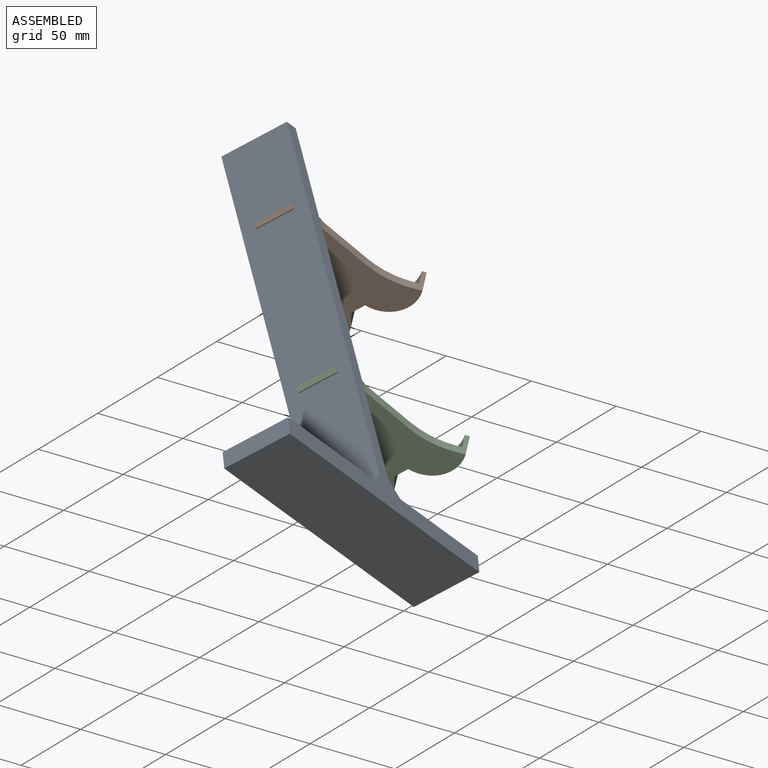
[diagram: assembled view]
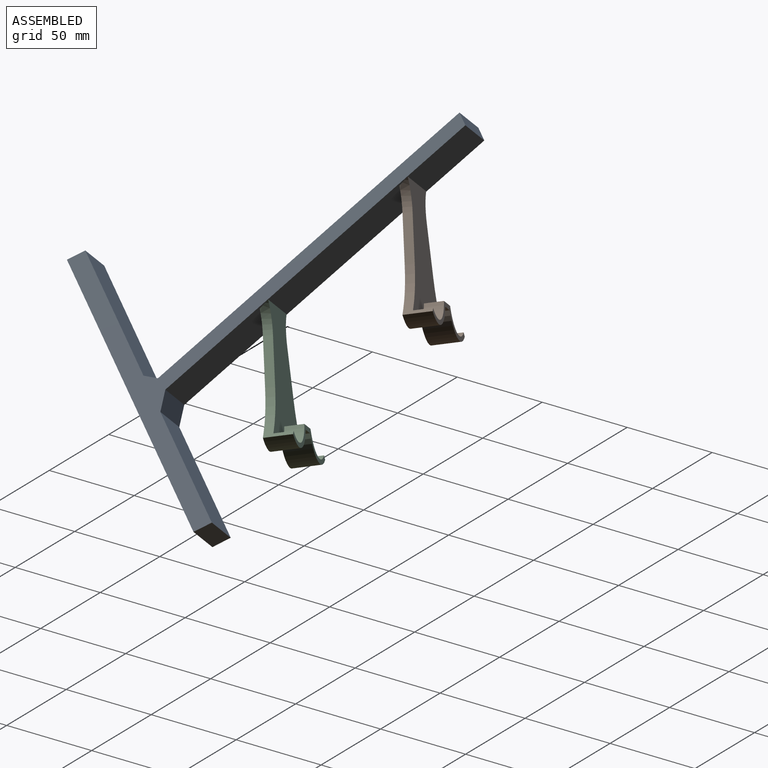
[diagram: assembled view, second angle]
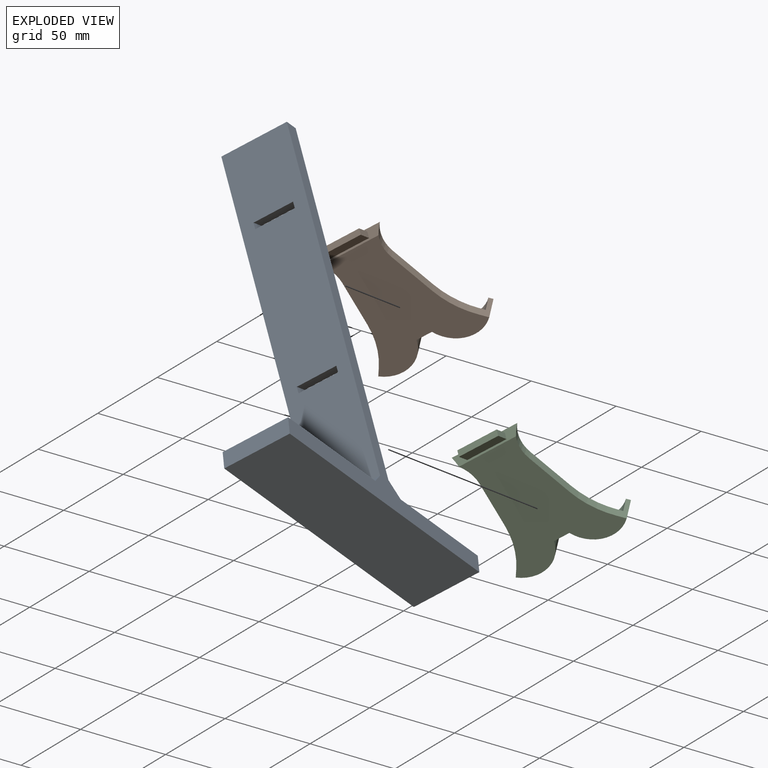
[diagram: exploded view]
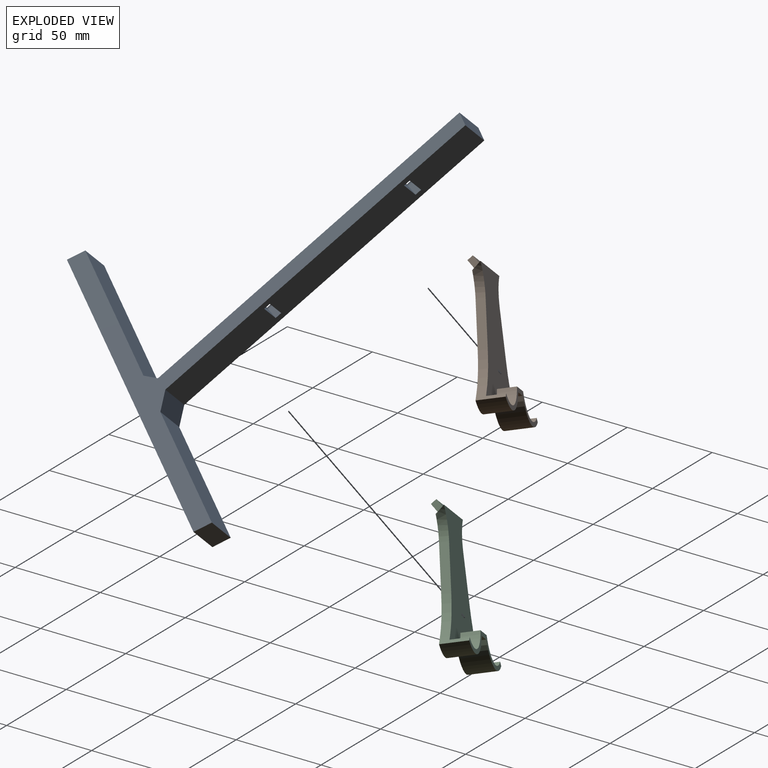
[diagram: exploded view, second angle]
ASSEMBLY  parts=3 mates=2
PART A: 20 faces, bbox 40x150x203.2 mm
  f0: plane 186.42x49.95mm, normal (0,-0.97,0.26), area 7546.2mm2, adj f7,f8,f9,f10,f11,f12,f13,f14
  f1: plane 187.39x50.21mm, normal (0,0.97,-0.26), area 7586.2mm2, adj f7,f8,f9,f10,f11,f12,f13,f14
  f2: plane 61x40mm, normal (0,0,1), area 2440mm2, adj f3,f8,f9,f18
  f3: plane 40x10mm, normal (0,-1,0), area 400mm2, adj f2,f4,f8,f9
  f4: plane 150x40mm, normal (0,0,-1), area 6000mm2, adj f3,f5,f8,f9
  f5: plane 40x10mm, normal (0,1,0), area 400mm2, adj f4,f6,f8,f9
  f6: plane 69x40mm, normal (0,0,1), area 2760mm2, adj f5,f8,f9,f19
  f7: plane 40x7mm, normal (0,0,1), area 280mm2, adj f0,f1,f8,f9
  f8: plane 203.19x150mm, normal (1,0,0), area 2893.3mm2, adj f0,f1,f2,f3,f4,f5,f6,f7
  f9: plane 203.19x150mm, normal (-1,0,0), area 2893.3mm2, adj f0,f1,f2,f3,f4,f5,f6,f7
  f10: plane 24.14x6.53mm, normal (0,0.26,0.97), area 163.2mm2, adj f0,f1,f11,f13
  f11: plane 7.46x5.23mm, normal (-1,0,0), area 24.3mm2, adj f0,f1,f10,f12
  f12: plane 24.14x6.53mm, normal (0,-0.26,-0.97), area 163.2mm2, adj f0,f1,f11,f13
  f13: plane 7.46x5.23mm, normal (1,0,0), area 24.3mm2, adj f0,f1,f10,f12
  f14: plane 7.46x5.23mm, normal (-1,0,0), area 24.3mm2, adj f0,f1,f15,f17
  f15: plane 24.14x6.53mm, normal (0,-0.26,-0.97), area 163.2mm2, adj f0,f1,f14,f16
  f16: plane 7.46x5.23mm, normal (1,0,0), area 24.3mm2, adj f0,f1,f15,f17
  f17: plane 24.14x6.53mm, normal (0,0.26,0.97), area 163.2mm2, adj f0,f1,f14,f16
  f18: plane 40x8.81mm, normal (0,-0.61,0.79), area 444.3mm2, adj f0,f2,f8,f9
  f19: plane 40x5.8mm, normal (0,0.79,0.61), area 292.2mm2, adj f1,f6,f8,f9
PART B: 23 faces, bbox 67.8x80.2x18.1 mm
  f0: plane 40x5mm, normal (0,0.82,-0.57), area 143.1mm2, adj f1,f2,f3,f15,f18,f19,f20,f21
  f1: plane 71.82x67.78mm, normal (0,0,-1), area 2745.1mm2, adj f0,f2,f3,f5,f6,f7,f8,f9
  f2: cylinder r=20mm len=17.05mm, axis (0,0,1), area 80.9mm2, adj f0,f1,f14,f15
  f3: cylinder r=20mm len=17.05mm, axis (0,0,1), area 80.9mm2, adj f0,f1,f13,f15
  f4: plane 67.78x14.5mm, normal (0,0,1), area 196.9mm2, adj f5,f6,f7,f8,f9,f10,f11,f12
  f5: plane 15x3.91mm, normal (0.77,0.64,0), area 50.5mm2, adj f1,f4,f9,f12,f15,f16
  f6: plane 15x3.91mm, normal (-0.77,0.64,0), area 50.5mm2, adj f1,f4,f7,f10,f15,f17
  f7: cylinder r=18.5mm len=29.21mm, axis (0,0,-1), area 530mm2, adj f1,f4,f6,f8
  f8: plane 15x9.36mm, normal (0,-1,0), area 140.4mm2, adj f1,f4,f7,f9
  f9: cylinder r=18.5mm len=29.21mm, axis (0,0,-1), area 530mm2, adj f1,f4,f5,f8
  f10: cylinder r=16mm len=25.78mm, axis (0,0,-1), area 322.6mm2, adj f4,f6,f11,f15
  f11: plane 13.02x10mm, normal (0,1,0), area 130.2mm2, adj f4,f10,f12,f15
  f12: cylinder r=16mm len=25.78mm, axis (0,0,-1), area 322.6mm2, adj f4,f5,f11,f15
  f13: plane 26.57x5mm, normal (0.98,0.17,0), area 134.9mm2, adj f1,f3,f15,f16
  f14: plane 26.57x5mm, normal (-0.98,0.17,0), area 134.9mm2, adj f1,f2,f15,f17
  f15: plane 72.82x64.57mm, normal (0,0,1), area 2678.5mm2, adj f0,f2,f3,f5,f6,f10,f11,f12
  f16: cylinder r=50mm len=23.46mm, axis (0,0,-1), area 130.9mm2, adj f1,f5,f13,f15
  f17: cylinder r=50mm len=23.46mm, axis (0,0,-1), area 130.9mm2, adj f1,f6,f14,f15
  f18: plane 7.74x6.88mm, normal (-1,0,0), area 24.5mm2, adj f0,f19,f21,f22
  f19: plane 24x5.73mm, normal (0,0.57,0.82), area 168mm2, adj f0,f18,f20,f22
  f20: plane 7.74x6.88mm, normal (1,0,0), area 24.5mm2, adj f0,f19,f21,f22
  f21: plane 24x5.73mm, normal (0,-0.57,-0.82), area 168mm2, adj f0,f18,f20,f22
  f22: plane 24x2.87mm, normal (0,0.82,-0.57), area 84mm2, adj f18,f19,f20,f21
PART C: same geometry as B
PLACE A rot(axis=(0.33,-0.4,-0.85),180deg) t=(89.15,-192.69,-225.95)mm
PLACE B rot(axis=(-0.33,0.54,0.77),173.4deg) t=(-21.83,-64.36,-134.5)mm
PLACE C rot(axis=(-0.33,0.54,0.77),173.4deg) t=(33.8,-107.54,-190.21)mm
MATE parallel C.f0 <-> A.f0  axis (-0.11,-0.84,0.54) through (8.05,-127.74,-145.68)mm
MATE parallel B.f0 <-> A.f0  axis (-0.11,-0.84,0.54) through (-47.59,-84.56,-89.97)mm
